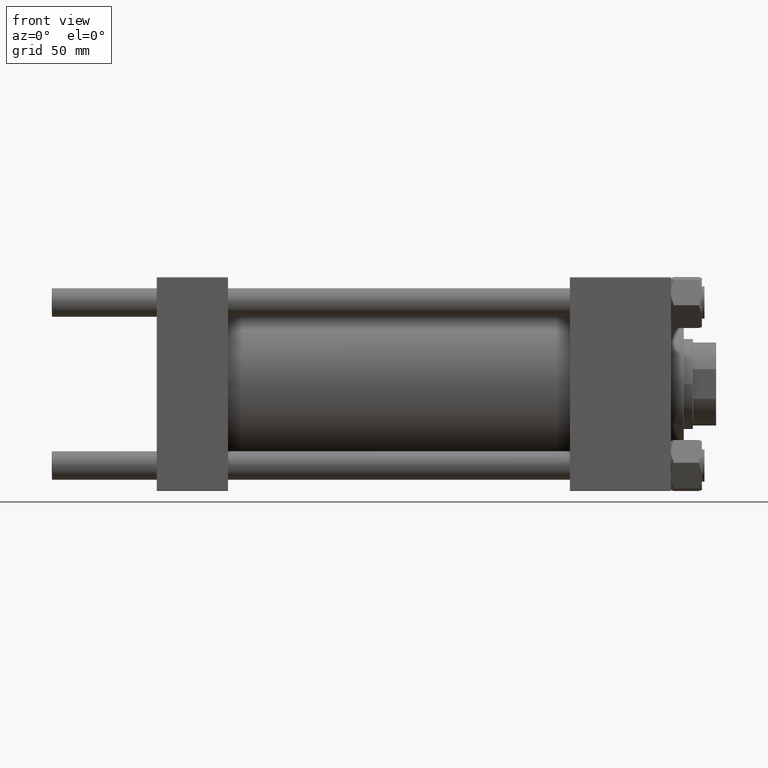
[diagram: clean part render]
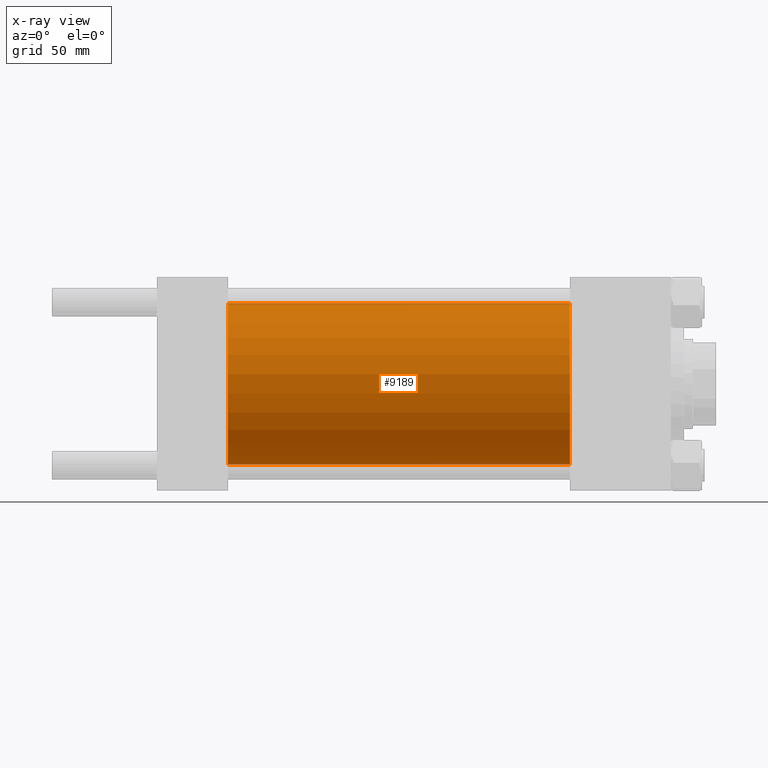
[diagram: x-ray — body ghosted, one internal face saturated and labeled with its STEP entity id]
A machine part, front view, then the same camera in x-ray: the body is ghosted and one INTERNAL B-rep face — a face not visible from any outside direction — is saturated and labeled: STEP entity #9189.
In plain terms, the highlighted cylindrical surface (partial cylindrical patch) has radius 62.5 mm, axis along (-1, -0, -0).
Its self-contained STEP definition (entity closure, byte-faithful):
#969 = CARTESIAN_POINT ( 'NONE',  ( 55.00000000000000000, 0.000000000000000000, 0.000000000000000000 ) ) ;
#1579 = CIRCLE ( 'NONE', #9631, 62.50000000000000000 ) ;
#2441 = EDGE_LOOP ( 'NONE', ( #47858, #8348, #20580, #30437 ) ) ;
#2555 = LINE ( 'NONE', #18105, #27894 ) ;
#2714 = DIRECTION ( 'NONE',  ( 1.000000000000000000, 0.000000000000000000, 0.000000000000000000 ) ) ;
#3575 = EDGE_CURVE ( 'NONE', #8868, #49969, #14796, .T. ) ;
#5856 = AXIS2_PLACEMENT_3D ( 'NONE', #22085, #2714, #14441 ) ;
#6158 = AXIS2_PLACEMENT_3D ( 'NONE', #10332, #29470, #14918 ) ;
#7900 = CARTESIAN_POINT ( 'NONE',  ( 319.0000000000000000, 0.000000000000000000, 62.50000000000000000 ) ) ;
#8113 = VERTEX_POINT ( 'NONE', #30227 ) ;
#8348 = ORIENTED_EDGE ( 'NONE', *, *, #13268, .T. ) ;
#8868 = VERTEX_POINT ( 'NONE', #7900 ) ;
#9189 = ADVANCED_FACE ( 'NONE', ( #25882 ), #18743, .F. ) ;
#9631 = AXIS2_PLACEMENT_3D ( 'NONE', #969, #32881, #20860 ) ;
#9774 = LINE ( 'NONE', #36602, #39013 ) ;
#10332 = CARTESIAN_POINT ( 'NONE',  ( 319.0000000000000000, 0.000000000000000000, 0.000000000000000000 ) ) ;
#10545 = CARTESIAN_POINT ( 'NONE',  ( 319.0000000000000000, 7.654042494670957804E-15, -62.50000000000000000 ) ) ;
#11658 = EDGE_CURVE ( 'NONE', #8113, #49662, #1579, .T. ) ;
#13268 = EDGE_CURVE ( 'NONE', #49969, #49662, #9774, .T. ) ;
#14441 = DIRECTION ( 'NONE',  ( 0.000000000000000000, 0.000000000000000000, -1.000000000000000000 ) ) ;
#14796 = CIRCLE ( 'NONE', #5856, 62.50000000000000000 ) ;
#14918 = DIRECTION ( 'NONE',  ( 0.000000000000000000, 0.000000000000000000, 1.000000000000000000 ) ) ;
#16924 = DIRECTION ( 'NONE',  ( -1.000000000000000000, -0.000000000000000000, -0.000000000000000000 ) ) ;
#17491 = CARTESIAN_POINT ( 'NONE',  ( 55.00000000000000000, 7.654042494670957804E-15, -62.50000000000000000 ) ) ;
#18105 = CARTESIAN_POINT ( 'NONE',  ( 319.0000000000000000, 0.000000000000000000, 62.50000000000000000 ) ) ;
#18743 = CYLINDRICAL_SURFACE ( 'NONE', #6158, 62.50000000000000000 ) ;
#20580 = ORIENTED_EDGE ( 'NONE', *, *, #11658, .F. ) ;
#20860 = DIRECTION ( 'NONE',  ( 0.000000000000000000, 0.000000000000000000, -1.000000000000000000 ) ) ;
#22085 = CARTESIAN_POINT ( 'NONE',  ( 319.0000000000000000, 0.000000000000000000, 0.000000000000000000 ) ) ;
#25882 = FACE_OUTER_BOUND ( 'NONE', #2441, .T. ) ;
#27287 = EDGE_CURVE ( 'NONE', #8868, #8113, #2555, .T. ) ;
#27894 = VECTOR ( 'NONE', #33692, 1000.000000000000000 ) ;
#29470 = DIRECTION ( 'NONE',  ( -1.000000000000000000, -0.000000000000000000, -0.000000000000000000 ) ) ;
#30227 = CARTESIAN_POINT ( 'NONE',  ( 55.00000000000000000, 0.000000000000000000, 62.50000000000000000 ) ) ;
#30437 = ORIENTED_EDGE ( 'NONE', *, *, #27287, .F. ) ;
#32881 = DIRECTION ( 'NONE',  ( 1.000000000000000000, 0.000000000000000000, 0.000000000000000000 ) ) ;
#33692 = DIRECTION ( 'NONE',  ( -1.000000000000000000, -0.000000000000000000, -0.000000000000000000 ) ) ;
#36602 = CARTESIAN_POINT ( 'NONE',  ( 319.0000000000000000, 7.654042494670957804E-15, -62.50000000000000000 ) ) ;
#39013 = VECTOR ( 'NONE', #16924, 1000.000000000000000 ) ;
#47858 = ORIENTED_EDGE ( 'NONE', *, *, #3575, .T. ) ;
#49662 = VERTEX_POINT ( 'NONE', #17491 ) ;
#49969 = VERTEX_POINT ( 'NONE', #10545 ) ;